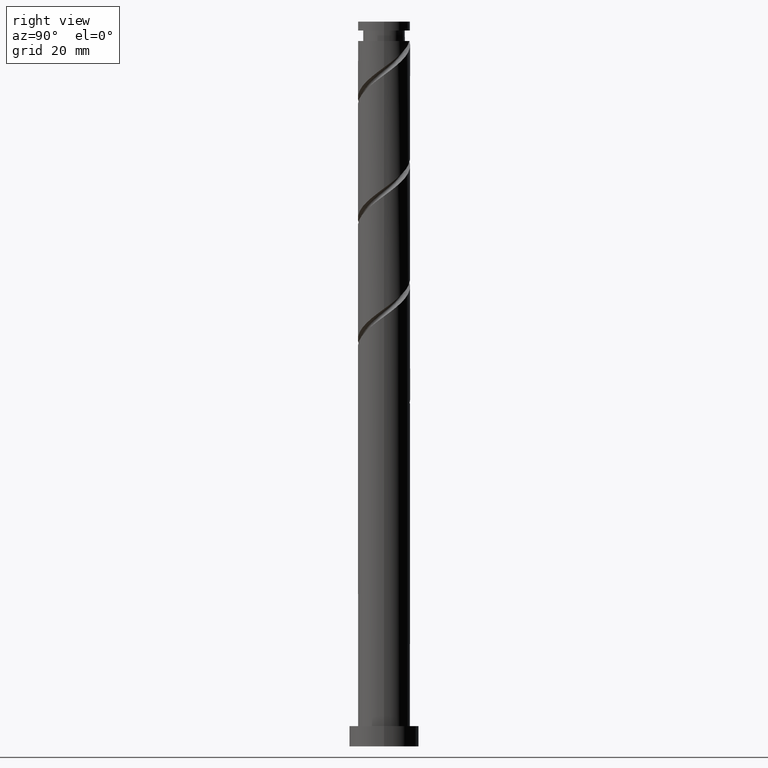
[diagram: clean part render]
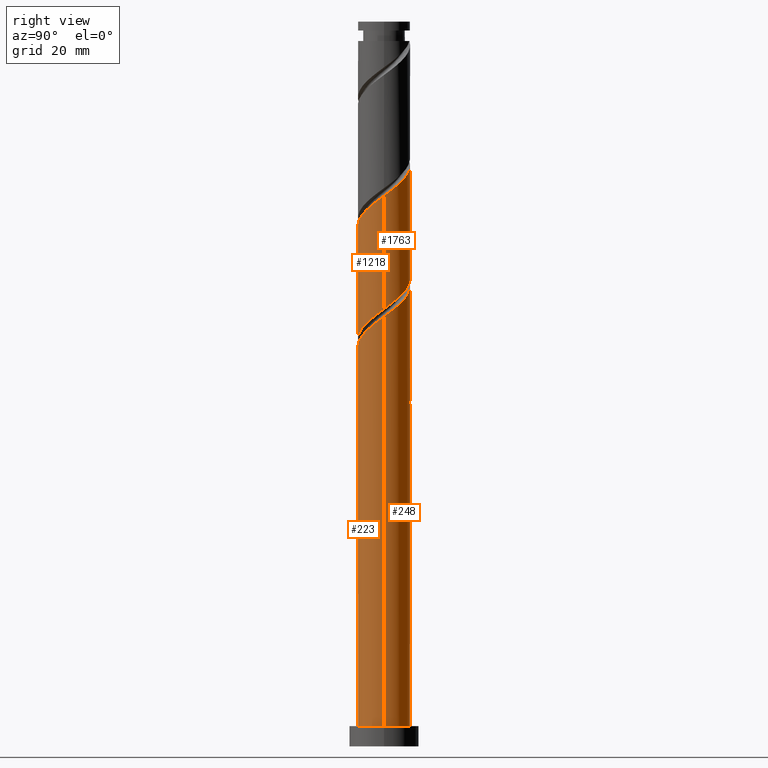
[diagram: same view with one multi-face feature highlighted, each face labeled with its STEP entity id]
A machine part, right view. The highlighted faces form ONE feature: a constant-radius fillet chain: 4 tangent blend faces with common blend radius 9 mm. The faces share edges in the B-rep.
Their STEP definitions:
[1] entity #223 (Cylinder):
#1 = CARTESIAN_POINT ( 'NONE',  ( -2.513026658482502729, -8.642030838509922930, 135.9426975238717716 ) ) ;
#102 = CARTESIAN_POINT ( 'NONE',  ( -8.971570738161101843, -0.7147856253253278558, 127.9298770110513175 ) ) ;
#151 = CARTESIAN_POINT ( 'NONE',  ( 8.881932594424455374, -1.453022156782449503, 147.1606462418205012 ) ) ;
#153 = LINE ( 'NONE', #1181, #1311 ) ;
#166 = EDGE_CURVE ( 'NONE', #523, #738, #1798, .T. ) ;
#223 = ADVANCED_FACE ( 'NONE', ( #701 ), #391, .T. ) ;
#235 = CARTESIAN_POINT ( 'NONE',  ( -5.453992861915051726, -7.242110811148893212, 133.5388513700256397 ) ) ;
#244 = CARTESIAN_POINT ( 'NONE',  ( -7.611753926546287907, -4.802208050647889692, 131.1350052161794792 ) ) ;
#351 = CARTESIAN_POINT ( 'NONE',  ( -9.000000000000015987, -2.034007640527002199E-15, 127.4032371864415296 ) ) ;
#365 = CARTESIAN_POINT ( 'NONE',  ( -9.000000000000014211, -2.034007640527002199E-15, 127.4032371864415296 ) ) ;
#375 = CARTESIAN_POINT ( 'NONE',  ( 1.790977386791917647, -8.820000000000012719, 139.1478257290000045 ) ) ;
#377 = CARTESIAN_POINT ( 'NONE',  ( 9.000000000000001776, 1.102182119232617911E-15, 7.000000000000000000 ) ) ;
#391 = CYLINDRICAL_SURFACE ( 'NONE', #482, 9.000000000000001776 ) ;
#408 = CARTESIAN_POINT ( 'NONE',  ( -7.028660301190715387, -5.726442308208970822, 131.9362872674615801 ) ) ;
#415 = CARTESIAN_POINT ( 'NONE',  ( 3.849698997916966903, -8.135097886653692711, 140.7503898315640924 ) ) ;
#424 = CARTESIAN_POINT ( 'NONE',  ( -3.562359181962312160, -8.336894157746568723, 135.1414154725896992 ) ) ;
#482 = AXIS2_PLACEMENT_3D ( 'NONE', #997, #1549, #974 ) ;
#496 = ORIENTED_EDGE ( 'NONE', *, *, #1120, .F. ) ;
#505 = CARTESIAN_POINT ( 'NONE',  ( -9.000000000000001776, 0.000000000000000000, 7.000000000000000000 ) ) ;
#516 = ORIENTED_EDGE ( 'NONE', *, *, #166, .T. ) ;
#523 = VERTEX_POINT ( 'NONE', #505 ) ;
#525 = CARTESIAN_POINT ( 'NONE',  ( 7.189307669428963266, -5.414227113290515980, 143.9555180366922968 ) ) ;
#568 = CARTESIAN_POINT ( 'NONE',  ( 8.705503762482042163, -2.531484027243907420, 146.3593641905384573 ) ) ;
#580 = DIRECTION ( 'NONE',  ( -0.000000000000000000, -0.000000000000000000, -1.000000000000000000 ) ) ;
#665 = CARTESIAN_POINT ( 'NONE',  ( -4.508176021938681721, -7.789502484447732300, 134.3401334213076836 ) ) ;
#670 = EDGE_CURVE ( 'NONE', #992, #523, #824, .T. ) ;
#676 = CARTESIAN_POINT ( 'NONE',  ( -9.000000000000014211, -0.3579581730309214782, 127.6674081020744751 ) ) ;
#701 = FACE_OUTER_BOUND ( 'NONE', #1074, .T. ) ;
#732 = CARTESIAN_POINT ( 'NONE',  ( 2.861919278812256273, -8.602535973789519730, 139.9491077802820485 ) ) ;
#738 = VERTEX_POINT ( 'NONE', #377 ) ;
#806 = CARTESIAN_POINT ( 'NONE',  ( -6.241326581552884001, -6.484276559678935570, 132.7375693187435957 ) ) ;
#824 = LINE ( 'NONE', #1540, #1117 ) ;
#886 = EDGE_CURVE ( 'NONE', #1367, #738, #153, .T. ) ;
#948 = CARTESIAN_POINT ( 'NONE',  ( -8.194847551901860427, -3.877973793086812559, 130.3337231648974353 ) ) ;
#974 = DIRECTION ( 'NONE',  ( -1.000000000000000000, 0.000000000000000000, 0.000000000000000000 ) ) ;
#990 = DIRECTION ( 'NONE',  ( 0.000000000000000000, 0.000000000000000000, 1.000000000000000000 ) ) ;
#992 = VERTEX_POINT ( 'NONE', #351 ) ;
#997 = CARTESIAN_POINT ( 'NONE',  ( 0.000000000000000000, 0.000000000000000000, 250.0000000000000000 ) ) ;
#1000 = CARTESIAN_POINT ( 'NONE',  ( 5.684690096369587664, -6.977413454012724614, 142.3529539341282373 ) ) ;
#1009 = CARTESIAN_POINT ( 'NONE',  ( -0.3718293201155592476, -8.992315772741894975, 137.5452616264359165 ) ) ;
#1066 = ORIENTED_EDGE ( 'NONE', *, *, #886, .F. ) ;
#1074 = EDGE_LOOP ( 'NONE', ( #1066, #496, #1726, #516 ) ) ;
#1096 = CARTESIAN_POINT ( 'NONE',  ( 0.7200354947715748022, -9.037464026210509260, 138.3465436777179605 ) ) ;
#1117 = VECTOR ( 'NONE', #1836, 1000.000000000000000 ) ;
#1120 = EDGE_CURVE ( 'NONE', #992, #1367, #1832, .T. ) ;
#1181 = CARTESIAN_POINT ( 'NONE',  ( 9.000000000000001776, 1.102182119232617911E-15, 250.0000000000000000 ) ) ;
#1188 = CARTESIAN_POINT ( 'NONE',  ( 9.000000000000017764, 8.076206807974860860E-16, 148.2365705197748298 ) ) ;
#1236 = CARTESIAN_POINT ( 'NONE',  ( 6.531901475717496020, -6.287167108507587976, 143.1542359854103097 ) ) ;
#1244 = CARTESIAN_POINT ( 'NONE',  ( 9.000000000000015987, -0.7313079468334059419, 147.6968697824264893 ) ) ;
#1282 = DIRECTION ( 'NONE',  ( 1.000000000000000000, 0.000000000000000000, 0.000000000000000000 ) ) ;
#1285 = CARTESIAN_POINT ( 'NONE',  ( 9.000000000000017764, 8.076206807974860860E-16, 148.2365705197748582 ) ) ;
#1311 = VECTOR ( 'NONE', #580, 1000.000000000000000 ) ;
#1366 = CARTESIAN_POINT ( 'NONE',  ( 4.837478717021678420, -7.667659799517866581, 141.5516718828461649 ) ) ;
#1367 = VERTEX_POINT ( 'NONE', #1188 ) ;
#1465 = AXIS2_PLACEMENT_3D ( 'NONE', #1831, #990, #1282 ) ;
#1504 = CARTESIAN_POINT ( 'NONE',  ( -8.539813800928600429, -2.841052665029230262, 129.5324411136153913 ) ) ;
#1513 = CARTESIAN_POINT ( 'NONE',  ( -8.884780049955336878, -1.804131536971649741, 128.7311590623333473 ) ) ;
#1540 = CARTESIAN_POINT ( 'NONE',  ( -9.000000000000001776, 0.000000000000000000, 250.0000000000000000 ) ) ;
#1549 = DIRECTION ( 'NONE',  ( -0.000000000000000000, -0.000000000000000000, -1.000000000000000000 ) ) ;
#1561 = CARTESIAN_POINT ( 'NONE',  ( 7.846713863140434064, -4.541287118073442208, 144.7568000879743693 ) ) ;
#1710 = CARTESIAN_POINT ( 'NONE',  ( -1.463694135002693519, -8.947167519273277136, 136.7439795751538441 ) ) ;
#1726 = ORIENTED_EDGE ( 'NONE', *, *, #670, .T. ) ;
#1798 = CIRCLE ( 'NONE', #1465, 9.000000000000001776 ) ;
#1809 = CARTESIAN_POINT ( 'NONE',  ( 8.276108812811241222, -3.536385572658672150, 145.5580821392564417 ) ) ;
#1831 = CARTESIAN_POINT ( 'NONE',  ( 0.000000000000000000, 0.000000000000000000, 7.000000000000000000 ) ) ;
#1832 =( BOUNDED_CURVE ( )  B_SPLINE_CURVE ( 2, ( #365, #676, #102, #1513, #1504, #948, #244, #408, #806, #235, #665, #424, #1, #1710, #1009, #1096, #375, #732, #415, #1366, #1000, #1236, #525, #1561, #1809, #568, #151, #1244, #1285 ),
 .UNSPECIFIED., .F., .T. ) 
 B_SPLINE_CURVE_WITH_KNOTS ( ( 3, 2, 2, 2, 2, 2, 2, 2, 2, 2, 2, 2, 2, 2, 3 ),
 ( 0.05452716259738339677, 0.05769230769230770939, 0.06730769230769229061, 0.07692307692307687184, 0.08653846153846156408, 0.09615384615384614531, 0.1057692307692307265, 0.1153846153846154188, 0.1250000000000000000, 0.1346153846153845812, 0.1442307692307692735, 0.1538461538461538547, 0.1634615384615384359, 0.1730769230769231282, 0.1795271625973833829 ),
 .UNSPECIFIED. ) 
 CURVE ( )  GEOMETRIC_REPRESENTATION_ITEM ( )  RATIONAL_B_SPLINE_CURVE ( ( 0.9061636035682776313, 0.9069090390690662806, 0.9090909090909228274, 0.9024626128164262573, 0.9090909090909228274, 0.9024626128164262573, 0.9090909090909228274, 0.9024626128164262573, 0.9090909090909228274, 0.9024626128164262573, 0.9090909090909228274, 0.9024626128164262573, 0.9090909090909228274, 0.9024626128164262573, 0.9090909090909228274, 0.9024626128164262573, 0.9090909090909228274, 0.9024626128164262573, 0.9090909090909228274, 0.9024626128164262573, 0.9090909090909228274, 0.9024626128164262573, 0.9090909090909228274, 0.9024626128164262573, 0.9090909090909228274, 0.9024626128164262573, 0.9090909090909228274, 0.9046444828382826930, 0.9061636035682776313 ) ) 
 REPRESENTATION_ITEM ( '' )  );
#1836 = DIRECTION ( 'NONE',  ( -0.000000000000000000, -0.000000000000000000, -1.000000000000000000 ) ) ;
[2] entity #248 (Cylinder):
#13 = AXIS2_PLACEMENT_3D ( 'NONE', #171, #768, #1729 ) ;
#36 = CARTESIAN_POINT ( 'NONE',  ( -6.531901475717496908, 6.287167108507587088, 122.3209026520769100 ) ) ;
#44 = CARTESIAN_POINT ( 'NONE',  ( -7.189307669428964154, 5.414227113290515092, 123.1221847033589967 ) ) ;
#59 = CARTESIAN_POINT ( 'NONE',  ( -6.531901475717496908, 6.287167108507587088, 163.9875693187436241 ) ) ;
#79 = VERTEX_POINT ( 'NONE', #1021 ) ;
#81 = CARTESIAN_POINT ( 'NONE',  ( -0.7200354947715740250, 9.037464026210509260, 159.1798770110513033 ) ) ;
#90 = CARTESIAN_POINT ( 'NONE',  ( 1.790977386791919423, 8.820000000000000284, 118.3144923956666617 ) ) ;
#126 = DIRECTION ( 'NONE',  ( -1.000000000000000000, 0.000000000000000000, 0.000000000000000000 ) ) ;
#130 =( BOUNDED_CURVE ( )  B_SPLINE_CURVE ( 2, ( #880, #758, #1439, #1310, #1748, #36, #44, #900, #188, #1327, #528, #1661, #800 ),
 .UNSPECIFIED., .F., .T. ) 
 B_SPLINE_CURVE_WITH_KNOTS ( ( 3, 2, 2, 2, 2, 2, 3 ),
 ( 0.000000000000000000, 0.009615384615384582959, 0.01923076923076927347, 0.02884615384615385469, 0.03846153846153842898, 0.04807692307692312816, 0.05452716259738338983 ),
 .UNSPECIFIED. ) 
 CURVE ( )  GEOMETRIC_REPRESENTATION_ITEM ( )  RATIONAL_B_SPLINE_CURVE ( ( 0.9090909090909228274, 0.9024626128164262573, 0.9090909090909228274, 0.9024626128164262573, 0.9090909090909228274, 0.9024626128164262573, 0.9090909090909228274, 0.9024626128164262573, 0.9090909090909228274, 0.9024626128164262573, 0.9090909090909228274, 0.9046444828382826930, 0.9061636035682776313 ) ) 
 REPRESENTATION_ITEM ( '' )  );
#153 = LINE ( 'NONE', #1181, #1311 ) ;
#171 = CARTESIAN_POINT ( 'NONE',  ( 0.000000000000000000, 0.000000000000000000, 118.3144923956666901 ) ) ;
#185 = CARTESIAN_POINT ( 'NONE',  ( -8.884780049955320891, 1.804131536971649297, 128.7311590623333473 ) ) ;
#188 = CARTESIAN_POINT ( 'NONE',  ( -8.276108812811241222, 3.536385572658672150, 124.7247488059230989 ) ) ;
#195 = CARTESIAN_POINT ( 'NONE',  ( 3.562359181962313937, 8.336894157746568723, 155.9747488059230704 ) ) ;
#215 = CARTESIAN_POINT ( 'NONE',  ( -7.028660301190702953, 5.726442308208962828, 125.5260308572051287 ) ) ;
#226 = CARTESIAN_POINT ( 'NONE',  ( -7.611753926546275473, 4.802208050647887916, 126.3273129084872011 ) ) ;
#248 = ADVANCED_FACE ( 'NONE', ( #828 ), #282, .T. ) ;
#282 = CYLINDRICAL_SURFACE ( 'NONE', #393, 9.000000000000001776 ) ;
#285 = CARTESIAN_POINT ( 'NONE',  ( -7.846713863140434064, 4.541287118073441320, 165.5901334213076836 ) ) ;
#303 = DIRECTION ( 'NONE',  ( 0.000000000000000000, 0.000000000000000000, 1.000000000000000000 ) ) ;
#335 = CARTESIAN_POINT ( 'NONE',  ( 7.028660301190718052, 5.726442308208966381, 152.7696206007948945 ) ) ;
#342 = CARTESIAN_POINT ( 'NONE',  ( -9.000000000000001776, 5.593521011449292137E-15, 130.0590809382252075 ) ) ;
#351 = CARTESIAN_POINT ( 'NONE',  ( -9.000000000000015987, -2.034007640527002199E-15, 127.4032371864415296 ) ) ;
#358 = CARTESIAN_POINT ( 'NONE',  ( -4.508176021938671063, 7.789502484447719866, 123.1221847033589967 ) ) ;
#377 = CARTESIAN_POINT ( 'NONE',  ( 9.000000000000001776, 1.102182119232617911E-15, 7.000000000000000000 ) ) ;
#393 = AXIS2_PLACEMENT_3D ( 'NONE', #1388, #850, #126 ) ;
#425 = EDGE_CURVE ( 'NONE', #882, #1543, #1610, .T. ) ;
#443 = ORIENTED_EDGE ( 'NONE', *, *, #670, .F. ) ;
#466 = EDGE_CURVE ( 'NONE', #882, #992, #130, .T. ) ;
#492 = CARTESIAN_POINT ( 'NONE',  ( 8.971570738161103620, 0.7147856253253245251, 148.7632103443846177 ) ) ;
#505 = CARTESIAN_POINT ( 'NONE',  ( -9.000000000000001776, 0.000000000000000000, 7.000000000000000000 ) ) ;
#513 = CARTESIAN_POINT ( 'NONE',  ( 5.453992861915056167, 7.242110811148891436, 154.3721847033589540 ) ) ;
#523 = VERTEX_POINT ( 'NONE', #505 ) ;
#528 = CARTESIAN_POINT ( 'NONE',  ( -8.881932594424455374, 1.453022156782448171, 126.3273129084871726 ) ) ;
#577 = CARTESIAN_POINT ( 'NONE',  ( -9.000000000000015987, -2.034007640527002199E-15, 169.0699038531081442 ) ) ;
#580 = DIRECTION ( 'NONE',  ( -0.000000000000000000, -0.000000000000000000, -1.000000000000000000 ) ) ;
#600 = ORIENTED_EDGE ( 'NONE', *, *, #1700, .F. ) ;
#624 = ORIENTED_EDGE ( 'NONE', *, *, #466, .F. ) ;
#630 = CARTESIAN_POINT ( 'NONE',  ( -7.189307669428964154, 5.414227113290515092, 164.7888513700256397 ) ) ;
#638 = CARTESIAN_POINT ( 'NONE',  ( -8.971570738161089409, 0.7147856253253311865, 129.5324411136153913 ) ) ;
#647 = CARTESIAN_POINT ( 'NONE',  ( 8.539813800928602205, 2.841052665029224933, 150.3657744469487341 ) ) ;
#656 = ORIENTED_EDGE ( 'NONE', *, *, #972, .F. ) ;
#670 = EDGE_CURVE ( 'NONE', #992, #523, #824, .T. ) ;
#673 = CARTESIAN_POINT ( 'NONE',  ( 1.790977386791919423, 8.820000000000000284, 118.3144923956666617 ) ) ;
#689 = CIRCLE ( 'NONE', #1225, 9.000000000000001776 ) ;
#722 = CARTESIAN_POINT ( 'NONE',  ( -8.276108812811241222, 3.536385572658672150, 166.3914154725897276 ) ) ;
#738 = VERTEX_POINT ( 'NONE', #377 ) ;
#744 = CARTESIAN_POINT ( 'NONE',  ( -1.790977386791916315, 8.820000000000012719, 118.3144923956666617 ) ) ;
#758 = CARTESIAN_POINT ( 'NONE',  ( -2.861919278812257605, 8.602535973789519730, 119.1157744469487341 ) ) ;
#766 = CARTESIAN_POINT ( 'NONE',  ( 0.3718293201155645766, 8.992315772741894975, 158.3785949597692593 ) ) ;
#768 = DIRECTION ( 'NONE',  ( -2.567906592516314938E-30, -3.854941057726240267E-15, -1.000000000000000000 ) ) ;
#773 = CARTESIAN_POINT ( 'NONE',  ( -5.684690096369588552, 6.977413454012724614, 163.1862872674615517 ) ) ;
#800 = CARTESIAN_POINT ( 'NONE',  ( -9.000000000000014211, -2.034007640527002199E-15, 127.4032371864415296 ) ) ;
#812 = LINE ( 'NONE', #1072, #1107 ) ;
#824 = LINE ( 'NONE', #1540, #1117 ) ;
#826 =( BOUNDED_CURVE ( )  B_SPLINE_CURVE ( 2, ( #342, #1087, #638, #185, #917, #1201, #226, #215, #1615, #1049, #358, #1475, #1634, #1494, #1358, #1486, #90 ),
 .UNSPECIFIED., .F., .T. ) 
 B_SPLINE_CURVE_WITH_KNOTS ( ( 3, 2, 2, 2, 2, 2, 2, 2, 3 ),
 ( 0.9295271625973833274, 0.9326923076923077094, 0.9423076923076922906, 0.9519230769230768718, 0.9615384615384615641, 0.9711538461538461453, 0.9807692307692307265, 0.9903846153846154188, 1.000000000000000000 ),
 .UNSPECIFIED. ) 
 CURVE ( )  GEOMETRIC_REPRESENTATION_ITEM ( )  RATIONAL_B_SPLINE_CURVE ( ( 0.9061636035682715251, 0.9069090390690601744, 0.9090909090909166101, 0.9024626128164202621, 0.9090909090909166101, 0.9024626128164202621, 0.9090909090909166101, 0.9024626128164202621, 0.9090909090909166101, 0.9024626128164202621, 0.9090909090909166101, 0.9024626128164202621, 0.9090909090909166101, 0.9024626128164202621, 0.9090909090909166101, 0.9024626128164202621, 0.9090909090909166101 ) ) 
 REPRESENTATION_ITEM ( '' )  );
#828 = FACE_OUTER_BOUND ( 'NONE', #1069, .T. ) ;
#850 = DIRECTION ( 'NONE',  ( -0.000000000000000000, -0.000000000000000000, -1.000000000000000000 ) ) ;
#880 = CARTESIAN_POINT ( 'NONE',  ( -1.790977386791916315, 8.820000000000012719, 118.3144923956666617 ) ) ;
#881 = ORIENTED_EDGE ( 'NONE', *, *, #1325, .T. ) ;
#882 = VERTEX_POINT ( 'NONE', #744 ) ;
#886 = EDGE_CURVE ( 'NONE', #1367, #738, #153, .T. ) ;
#898 = CARTESIAN_POINT ( 'NONE',  ( 2.513026658482507614, 8.642030838509921153, 156.7760308572051429 ) ) ;
#900 = CARTESIAN_POINT ( 'NONE',  ( -7.846713863140434064, 4.541287118073441320, 123.9234667546410549 ) ) ;
#909 = CARTESIAN_POINT ( 'NONE',  ( -1.790977386791916537, 8.820000000000012719, 159.9811590623333757 ) ) ;
#917 = CARTESIAN_POINT ( 'NONE',  ( -8.539813800928586218, 2.841052665029229818, 127.9298770110513175 ) ) ;
#925 = ORIENTED_EDGE ( 'NONE', *, *, #425, .T. ) ;
#928 = CARTESIAN_POINT ( 'NONE',  ( 1.463694135002694852, 8.947167519273277136, 157.5773129084871869 ) ) ;
#972 = EDGE_CURVE ( 'NONE', #79, #1543, #826, .T. ) ;
#992 = VERTEX_POINT ( 'NONE', #351 ) ;
#1019 = DIRECTION ( 'NONE',  ( 1.000000000000000000, 0.000000000000000000, 0.000000000000000000 ) ) ;
#1020 =( BOUNDED_CURVE ( )  B_SPLINE_CURVE ( 2, ( #1607, #1227, #492, #1065, #647, #1765, #1782, #335, #1791, #513, #1324, #195, #898, #928, #766, #81, #909, #1217, #1467, #1456, #773, #59, #630, #285, #722, #1645, #1699, #1693, #1146 ),
 .UNSPECIFIED., .F., .T. ) 
 B_SPLINE_CURVE_WITH_KNOTS ( ( 3, 2, 2, 2, 2, 2, 2, 2, 2, 2, 2, 2, 2, 2, 3 ),
 ( 0.1795271625973833829, 0.1826923076923077094, 0.1923076923076922906, 0.2019230769230768718, 0.2115384615384615641, 0.2211538461538461453, 0.2307692307692307265, 0.2403846153846154188, 0.2500000000000000000, 0.2596153846153845812, 0.2692307692307692735, 0.2788461538461538547, 0.2884615384615384359, 0.2980769230769231282, 0.3045271625973831608 ),
 .UNSPECIFIED. ) 
 CURVE ( )  GEOMETRIC_REPRESENTATION_ITEM ( )  RATIONAL_B_SPLINE_CURVE ( ( 0.9061636035682776313, 0.9069090390690662806, 0.9090909090909228274, 0.9024626128164262573, 0.9090909090909228274, 0.9024626128164262573, 0.9090909090909228274, 0.9024626128164262573, 0.9090909090909228274, 0.9024626128164262573, 0.9090909090909228274, 0.9024626128164262573, 0.9090909090909228274, 0.9024626128164262573, 0.9090909090909228274, 0.9024626128164262573, 0.9090909090909228274, 0.9024626128164262573, 0.9090909090909228274, 0.9024626128164262573, 0.9090909090909228274, 0.9024626128164262573, 0.9090909090909228274, 0.9024626128164262573, 0.9090909090909228274, 0.9024626128164262573, 0.9090909090909228274, 0.9046444828382829151, 0.9061636035682776313 ) ) 
 REPRESENTATION_ITEM ( '' )  );
#1021 = CARTESIAN_POINT ( 'NONE',  ( -9.000000000000001776, 5.593521011449292137E-15, 130.0590809382252075 ) ) ;
#1049 = CARTESIAN_POINT ( 'NONE',  ( -5.453992861915038404, 7.242110811148885219, 123.9234667546410122 ) ) ;
#1065 = CARTESIAN_POINT ( 'NONE',  ( 8.884780049955336878, 1.804131536971648631, 149.5644923956666617 ) ) ;
#1069 = EDGE_LOOP ( 'NONE', ( #1144, #1392, #881, #443, #624, #925, #656, #600 ) ) ;
#1072 = CARTESIAN_POINT ( 'NONE',  ( -9.000000000000001776, 0.000000000000000000, 250.0000000000000000 ) ) ;
#1082 = EDGE_CURVE ( 'NONE', #1367, #1109, #1020, .T. ) ;
#1087 = CARTESIAN_POINT ( 'NONE',  ( -9.000000000000000000, 0.3579581730309167042, 129.7949100225922052 ) ) ;
#1107 = VECTOR ( 'NONE', #1233, 1000.000000000000000 ) ;
#1109 = VERTEX_POINT ( 'NONE', #577 ) ;
#1117 = VECTOR ( 'NONE', #1836, 1000.000000000000000 ) ;
#1144 = ORIENTED_EDGE ( 'NONE', *, *, #1082, .F. ) ;
#1146 = CARTESIAN_POINT ( 'NONE',  ( -9.000000000000014211, -2.034007640527002199E-15, 169.0699038531081442 ) ) ;
#1177 = CARTESIAN_POINT ( 'NONE',  ( 0.000000000000000000, 0.000000000000000000, 7.000000000000000000 ) ) ;
#1181 = CARTESIAN_POINT ( 'NONE',  ( 9.000000000000001776, 1.102182119232617911E-15, 250.0000000000000000 ) ) ;
#1188 = CARTESIAN_POINT ( 'NONE',  ( 9.000000000000017764, 8.076206807974860860E-16, 148.2365705197748298 ) ) ;
#1201 = CARTESIAN_POINT ( 'NONE',  ( -8.194847551901844440, 3.877973793086807675, 127.1285949597692166 ) ) ;
#1217 = CARTESIAN_POINT ( 'NONE',  ( -2.861919278812257605, 8.602535973789519730, 160.7824411136153913 ) ) ;
#1225 = AXIS2_PLACEMENT_3D ( 'NONE', #1177, #303, #1019 ) ;
#1227 = CARTESIAN_POINT ( 'NONE',  ( 9.000000000000015987, 0.3579581730309179255, 148.5007414354077468 ) ) ;
#1233 = DIRECTION ( 'NONE',  ( -0.000000000000000000, -0.000000000000000000, -1.000000000000000000 ) ) ;
#1310 = CARTESIAN_POINT ( 'NONE',  ( -4.837478717021680197, 7.667659799517865693, 120.7183385495128221 ) ) ;
#1311 = VECTOR ( 'NONE', #580, 1000.000000000000000 ) ;
#1324 = CARTESIAN_POINT ( 'NONE',  ( 4.508176021938684386, 7.789502484447732300, 155.1734667546410833 ) ) ;
#1325 = EDGE_CURVE ( 'NONE', #738, #523, #689, .T. ) ;
#1327 = CARTESIAN_POINT ( 'NONE',  ( -8.705503762482043939, 2.531484027243902535, 125.5260308572051287 ) ) ;
#1358 = CARTESIAN_POINT ( 'NONE',  ( -0.3718293201155540850, 8.992315772741880764, 119.9170564982307781 ) ) ;
#1367 = VERTEX_POINT ( 'NONE', #1188 ) ;
#1388 = CARTESIAN_POINT ( 'NONE',  ( 0.000000000000000000, 0.000000000000000000, 250.0000000000000000 ) ) ;
#1392 = ORIENTED_EDGE ( 'NONE', *, *, #886, .T. ) ;
#1439 = CARTESIAN_POINT ( 'NONE',  ( -3.849698997916969567, 8.135097886653692711, 119.9170564982307781 ) ) ;
#1456 = CARTESIAN_POINT ( 'NONE',  ( -4.837478717021680197, 7.667659799517865693, 162.3850052161795077 ) ) ;
#1467 = CARTESIAN_POINT ( 'NONE',  ( -3.849698997916969567, 8.135097886653692711, 161.5837231648974353 ) ) ;
#1475 = CARTESIAN_POINT ( 'NONE',  ( -3.562359181962302834, 8.336894157746554512, 122.3209026520768532 ) ) ;
#1486 = CARTESIAN_POINT ( 'NONE',  ( 0.7200354947715791321, 9.037464026210495049, 119.1157744469487056 ) ) ;
#1494 = CARTESIAN_POINT ( 'NONE',  ( -1.463694135002686414, 8.947167519273266478, 120.7183385495128221 ) ) ;
#1540 = CARTESIAN_POINT ( 'NONE',  ( -9.000000000000001776, 0.000000000000000000, 250.0000000000000000 ) ) ;
#1543 = VERTEX_POINT ( 'NONE', #673 ) ;
#1607 = CARTESIAN_POINT ( 'NONE',  ( 9.000000000000017764, 8.076206807974860860E-16, 148.2365705197748582 ) ) ;
#1610 = CIRCLE ( 'NONE', #13, 9.000000000000001776 ) ;
#1615 = CARTESIAN_POINT ( 'NONE',  ( -6.241326581552871566, 6.484276559678926688, 124.7247488059230847 ) ) ;
#1634 = CARTESIAN_POINT ( 'NONE',  ( -2.513026658482495623, 8.642030838509908719, 121.5196206007949087 ) ) ;
#1645 = CARTESIAN_POINT ( 'NONE',  ( -8.705503762482043939, 2.531484027243902535, 167.1926975238718001 ) ) ;
#1661 = CARTESIAN_POINT ( 'NONE',  ( -9.000000000000015987, 0.7313079468334044986, 126.8635364490932034 ) ) ;
#1693 = CARTESIAN_POINT ( 'NONE',  ( -9.000000000000012434, 0.7313079468334309219, 168.5302031157597753 ) ) ;
#1699 = CARTESIAN_POINT ( 'NONE',  ( -8.881932594424455374, 1.453022156782448171, 167.9939795751538156 ) ) ;
#1700 = EDGE_CURVE ( 'NONE', #1109, #79, #812, .T. ) ;
#1729 = DIRECTION ( 'NONE',  ( 0.000000000000000000, 1.000000000000000000, -4.625929269271484533E-15 ) ) ;
#1748 = CARTESIAN_POINT ( 'NONE',  ( -5.684690096369588552, 6.977413454012724614, 121.5196206007948518 ) ) ;
#1765 = CARTESIAN_POINT ( 'NONE',  ( 8.194847551901862204, 3.877973793086809451, 151.1670564982307496 ) ) ;
#1782 = CARTESIAN_POINT ( 'NONE',  ( 7.611753926546287907, 4.802208050647890580, 151.9683385495127652 ) ) ;
#1791 = CARTESIAN_POINT ( 'NONE',  ( 6.241326581552884889, 6.484276559678933793, 153.5709026520769385 ) ) ;
#1836 = DIRECTION ( 'NONE',  ( -0.000000000000000000, -0.000000000000000000, -1.000000000000000000 ) ) ;
[3] entity #1218 (Cylinder):
#12 = EDGE_CURVE ( 'NONE', #999, #1671, #1762, .T. ) ;
#69 = CARTESIAN_POINT ( 'NONE',  ( 9.000000000000017764, 8.076206807974860860E-16, 189.9032371864414586 ) ) ;
#77 = CARTESIAN_POINT ( 'NONE',  ( 8.705503762482042163, -2.531484027243907420, 188.0260308572051429 ) ) ;
#79 = VERTEX_POINT ( 'NONE', #1021 ) ;
#87 = CARTESIAN_POINT ( 'NONE',  ( -5.453992861915051726, -7.242110811148893212, 175.2055180366922968 ) ) ;
#92 = ORIENTED_EDGE ( 'NONE', *, *, #578, .F. ) ;
#94 = CARTESIAN_POINT ( 'NONE',  ( 1.463694135002683083, -8.947167519273268255, 141.5516718828461080 ) ) ;
#106 = CARTESIAN_POINT ( 'NONE',  ( 9.000000000000001776, -9.272681890637864536E-15, 150.8924142715585219 ) ) ;
#113 = CYLINDRICAL_SURFACE ( 'NONE', #657, 9.000000000000001776 ) ;
#211 = CARTESIAN_POINT ( 'NONE',  ( 8.881932594424455374, -1.453022156782449503, 188.8273129084871300 ) ) ;
#217 = CARTESIAN_POINT ( 'NONE',  ( -8.276108812811228788, -3.536385572658663268, 132.7375693187435957 ) ) ;
#232 = CARTESIAN_POINT ( 'NONE',  ( 5.684690096369587664, -6.977413454012724614, 184.0196206007948376 ) ) ;
#247 = CARTESIAN_POINT ( 'NONE',  ( 7.028660301190700288, -5.726442308208967269, 146.3593641905384004 ) ) ;
#344 = CARTESIAN_POINT ( 'NONE',  ( 7.611753926546275473, -4.802208050647887916, 147.1606462418205581 ) ) ;
#347 = CARTESIAN_POINT ( 'NONE',  ( 9.000000000000001776, -9.272681890637864536E-15, 150.8924142715585219 ) ) ;
#356 = CARTESIAN_POINT ( 'NONE',  ( -6.241326581552884001, -6.484276559678935570, 174.4042359854103381 ) ) ;
#362 = CARTESIAN_POINT ( 'NONE',  ( -8.971570738161101843, -0.7147856253253278558, 169.5965436777179889 ) ) ;
#363 =( BOUNDED_CURVE ( )  B_SPLINE_CURVE ( 2, ( #510, #520, #362, #820, #662, #923, #1224, #1346, #356, #87, #382, #1789, #1382, #1780, #1207, #1062, #942, #636, #1491, #1501, #232, #1373, #1355, #1772, #794, #77, #211, #488, #1797 ),
 .UNSPECIFIED., .F., .T. ) 
 B_SPLINE_CURVE_WITH_KNOTS ( ( 3, 2, 2, 2, 2, 2, 2, 2, 2, 2, 2, 2, 2, 2, 3 ),
 ( 0.3045271625973831608, 0.3076923076923077094, 0.3173076923076922906, 0.3269230769230768718, 0.3365384615384615641, 0.3461538461538461453, 0.3557692307692307265, 0.3653846153846154188, 0.3750000000000000000, 0.3846153846153845812, 0.3942307692307692735, 0.4038461538461538547, 0.4134615384615384359, 0.4230769230769231282, 0.4295271625973832164 ),
 .UNSPECIFIED. ) 
 CURVE ( )  GEOMETRIC_REPRESENTATION_ITEM ( )  RATIONAL_B_SPLINE_CURVE ( ( 0.9061636035682776313, 0.9069090390690661696, 0.9090909090909228274, 0.9024626128164262573, 0.9090909090909228274, 0.9024626128164262573, 0.9090909090909228274, 0.9024626128164262573, 0.9090909090909228274, 0.9024626128164262573, 0.9090909090909228274, 0.9024626128164262573, 0.9090909090909228274, 0.9024626128164262573, 0.9090909090909228274, 0.9024626128164262573, 0.9090909090909228274, 0.9024626128164262573, 0.9090909090909228274, 0.9024626128164262573, 0.9090909090909228274, 0.9024626128164262573, 0.9090909090909228274, 0.9024626128164262573, 0.9090909090909228274, 0.9024626128164262573, 0.9090909090909228274, 0.9046444828382829151, 0.9061636035682776313 ) ) 
 REPRESENTATION_ITEM ( '' )  );
#368 = CARTESIAN_POINT ( 'NONE',  ( -8.705503762482027952, -2.531484027243894985, 131.9362872674615517 ) ) ;
#382 = CARTESIAN_POINT ( 'NONE',  ( -4.508176021938681721, -7.789502484447732300, 176.0068000879743693 ) ) ;
#384 = ORIENTED_EDGE ( 'NONE', *, *, #12, .F. ) ;
#478 = CARTESIAN_POINT ( 'NONE',  ( 9.000000000000001776, 1.102182119232617911E-15, 250.0000000000000000 ) ) ;
#488 = CARTESIAN_POINT ( 'NONE',  ( 9.000000000000012434, -0.7313079468334245936, 189.3635364490931181 ) ) ;
#495 = CARTESIAN_POINT ( 'NONE',  ( -4.837478717021676644, -7.667659799517847929, 136.7439795751537872 ) ) ;
#510 = CARTESIAN_POINT ( 'NONE',  ( -9.000000000000014211, -2.034007640527002199E-15, 169.0699038531081442 ) ) ;
#520 = CARTESIAN_POINT ( 'NONE',  ( -9.000000000000015987, -0.3579581730308948329, 169.3340747687410612 ) ) ;
#536 = CARTESIAN_POINT ( 'NONE',  ( 0.000000000000000000, 0.000000000000000000, 250.0000000000000000 ) ) ;
#577 = CARTESIAN_POINT ( 'NONE',  ( -9.000000000000015987, -2.034007640527002199E-15, 169.0699038531081442 ) ) ;
#578 = EDGE_CURVE ( 'NONE', #1671, #79, #1654, .T. ) ;
#632 = CARTESIAN_POINT ( 'NONE',  ( -6.531901475717487138, -6.287167108507572877, 135.1414154725896992 ) ) ;
#636 = CARTESIAN_POINT ( 'NONE',  ( 2.861919278812256273, -8.602535973789519730, 181.6157744469487341 ) ) ;
#641 = CARTESIAN_POINT ( 'NONE',  ( -8.881932594424444716, -1.453022156782441732, 131.1350052161795077 ) ) ;
#657 = AXIS2_PLACEMENT_3D ( 'NONE', #536, #1273, #1108 ) ;
#659 = CARTESIAN_POINT ( 'NONE',  ( -0.7200354947715811305, -9.037464026210495049, 139.9491077802820200 ) ) ;
#662 = CARTESIAN_POINT ( 'NONE',  ( -8.539813800928600429, -2.841052665029230262, 171.1991077802820200 ) ) ;
#669 = CARTESIAN_POINT ( 'NONE',  ( 6.241326581552871566, -6.484276559678926688, 145.5580821392564133 ) ) ;
#784 = CARTESIAN_POINT ( 'NONE',  ( 8.884780049955320891, -1.804131536971650407, 149.5644923956666332 ) ) ;
#794 = CARTESIAN_POINT ( 'NONE',  ( 8.276108812811241222, -3.536385572658672150, 187.2247488059230989 ) ) ;
#812 = LINE ( 'NONE', #1072, #1107 ) ;
#817 = CARTESIAN_POINT ( 'NONE',  ( -1.790977386791918313, -8.820000000000000284, 139.1478257290000045 ) ) ;
#820 = CARTESIAN_POINT ( 'NONE',  ( -8.884780049955336878, -1.804131536971649741, 170.3978257290000329 ) ) ;
#923 = CARTESIAN_POINT ( 'NONE',  ( -8.194847551901860427, -3.877973793086812559, 172.0003898315640924 ) ) ;
#942 = CARTESIAN_POINT ( 'NONE',  ( 1.790977386791917647, -8.820000000000012719, 180.8144923956666332 ) ) ;
#943 = ORIENTED_EDGE ( 'NONE', *, *, #1700, .T. ) ;
#999 = VERTEX_POINT ( 'NONE', #69 ) ;
#1021 = CARTESIAN_POINT ( 'NONE',  ( -9.000000000000001776, 5.593521011449292137E-15, 130.0590809382252075 ) ) ;
#1056 = DIRECTION ( 'NONE',  ( -0.000000000000000000, -0.000000000000000000, -1.000000000000000000 ) ) ;
#1062 = CARTESIAN_POINT ( 'NONE',  ( 0.7200354947715748022, -9.037464026210509260, 180.0132103443846177 ) ) ;
#1068 = CARTESIAN_POINT ( 'NONE',  ( -9.000000000000001776, 5.593521011449292137E-15, 130.0590809382252075 ) ) ;
#1072 = CARTESIAN_POINT ( 'NONE',  ( -9.000000000000001776, 0.000000000000000000, 250.0000000000000000 ) ) ;
#1081 = CARTESIAN_POINT ( 'NONE',  ( 9.000000000000000000, -0.3579581730309212562, 150.6282433559255480 ) ) ;
#1100 = CARTESIAN_POINT ( 'NONE',  ( -3.849698997916967791, -8.135097886653674948, 137.5452616264358880 ) ) ;
#1107 = VECTOR ( 'NONE', #1233, 1000.000000000000000 ) ;
#1108 = DIRECTION ( 'NONE',  ( -1.000000000000000000, 0.000000000000000000, 0.000000000000000000 ) ) ;
#1109 = VERTEX_POINT ( 'NONE', #577 ) ;
#1203 = CARTESIAN_POINT ( 'NONE',  ( -7.189307669428957048, -5.414227113290500881, 134.3401334213076836 ) ) ;
#1207 = CARTESIAN_POINT ( 'NONE',  ( -0.3718293201155592476, -8.992315772741894975, 179.2119282931025737 ) ) ;
#1212 = CARTESIAN_POINT ( 'NONE',  ( -9.000000000000007105, -0.7313079468334079403, 130.5987816755735480 ) ) ;
#1218 = ADVANCED_FACE ( 'NONE', ( #1376 ), #113, .T. ) ;
#1224 = CARTESIAN_POINT ( 'NONE',  ( -7.611753926546287907, -4.802208050647889692, 172.8016718828461649 ) ) ;
#1229 = CARTESIAN_POINT ( 'NONE',  ( -2.861919278812258494, -8.602535973789500190, 138.3465436777179605 ) ) ;
#1233 = DIRECTION ( 'NONE',  ( -0.000000000000000000, -0.000000000000000000, -1.000000000000000000 ) ) ;
#1239 = CARTESIAN_POINT ( 'NONE',  ( 4.508176021938668399, -7.789502484447722530, 143.9555180366922968 ) ) ;
#1273 = DIRECTION ( 'NONE',  ( -0.000000000000000000, -0.000000000000000000, -1.000000000000000000 ) ) ;
#1346 = CARTESIAN_POINT ( 'NONE',  ( -7.028660301190715387, -5.726442308208970822, 173.6029539341282373 ) ) ;
#1355 = CARTESIAN_POINT ( 'NONE',  ( 7.189307669428963266, -5.414227113290515980, 185.6221847033589825 ) ) ;
#1360 = CARTESIAN_POINT ( 'NONE',  ( 5.453992861915037516, -7.242110811148886995, 144.7568000879743693 ) ) ;
#1370 = CARTESIAN_POINT ( 'NONE',  ( 8.971570738161089409, -0.7147856253253362935, 150.3657744469487341 ) ) ;
#1373 = CARTESIAN_POINT ( 'NONE',  ( 6.531901475717496020, -6.287167108507587976, 184.8209026520769385 ) ) ;
#1376 = FACE_OUTER_BOUND ( 'NONE', #1833, .T. ) ;
#1382 = CARTESIAN_POINT ( 'NONE',  ( -2.513026658482502729, -8.642030838509922930, 177.6093641905384857 ) ) ;
#1491 = CARTESIAN_POINT ( 'NONE',  ( 3.849698997916966903, -8.135097886653692711, 182.4170564982308065 ) ) ;
#1498 = CARTESIAN_POINT ( 'NONE',  ( 2.513026658482495179, -8.642030838509908719, 142.3529539341282373 ) ) ;
#1501 = CARTESIAN_POINT ( 'NONE',  ( 4.837478717021678420, -7.667659799517866581, 183.2183385495127652 ) ) ;
#1517 = CARTESIAN_POINT ( 'NONE',  ( 8.194847551901844440, -3.877973793086807230, 147.9619282931025737 ) ) ;
#1576 = ORIENTED_EDGE ( 'NONE', *, *, #1656, .F. ) ;
#1579 = VECTOR ( 'NONE', #1056, 1000.000000000000000 ) ;
#1638 = CARTESIAN_POINT ( 'NONE',  ( 3.562359181962302390, -8.336894157746556289, 143.1542359854102813 ) ) ;
#1648 = CARTESIAN_POINT ( 'NONE',  ( -5.684690096369581447, -6.977413454012713956, 135.9426975238718001 ) ) ;
#1654 =( BOUNDED_CURVE ( )  B_SPLINE_CURVE ( 2, ( #106, #1081, #1370, #784, #1777, #1517, #344, #247, #669, #1360, #1239, #1638, #1498, #94, #1803, #659, #817, #1229, #1100, #495, #1648, #632, #1203, #1767, #217, #368, #641, #1212, #1068 ),
 .UNSPECIFIED., .F., .T. ) 
 B_SPLINE_CURVE_WITH_KNOTS ( ( 3, 2, 2, 2, 2, 2, 2, 2, 2, 2, 2, 2, 2, 2, 3 ),
 ( 0.8045271625973833274, 0.8076923076923077094, 0.8173076923076922906, 0.8269230769230768718, 0.8365384615384615641, 0.8461538461538461453, 0.8557692307692307265, 0.8653846153846154188, 0.8750000000000000000, 0.8846153846153845812, 0.8942307692307692735, 0.9038461538461538547, 0.9134615384615384359, 0.9230769230769231282, 0.9295271625973833274 ),
 .UNSPECIFIED. ) 
 CURVE ( )  GEOMETRIC_REPRESENTATION_ITEM ( )  RATIONAL_B_SPLINE_CURVE ( ( 0.9061636035682715251, 0.9069090390690601744, 0.9090909090909166101, 0.9024626128164202621, 0.9090909090909166101, 0.9024626128164202621, 0.9090909090909166101, 0.9024626128164202621, 0.9090909090909166101, 0.9024626128164202621, 0.9090909090909166101, 0.9024626128164202621, 0.9090909090909166101, 0.9024626128164202621, 0.9090909090909166101, 0.9024626128164202621, 0.9090909090909166101, 0.9024626128164202621, 0.9090909090909166101, 0.9024626128164202621, 0.9090909090909166101, 0.9024626128164202621, 0.9090909090909166101, 0.9024626128164202621, 0.9090909090909166101, 0.9024626128164202621, 0.9090909090909166101, 0.9046444828382766978, 0.9061636035682715251 ) ) 
 REPRESENTATION_ITEM ( '' )  );
#1656 = EDGE_CURVE ( 'NONE', #1109, #999, #363, .T. ) ;
#1671 = VERTEX_POINT ( 'NONE', #347 ) ;
#1700 = EDGE_CURVE ( 'NONE', #1109, #79, #812, .T. ) ;
#1762 = LINE ( 'NONE', #478, #1579 ) ;
#1767 = CARTESIAN_POINT ( 'NONE',  ( -7.846713863140423406, -4.541287118073426221, 133.5388513700256397 ) ) ;
#1772 = CARTESIAN_POINT ( 'NONE',  ( 7.846713863140434064, -4.541287118073442208, 186.4234667546410549 ) ) ;
#1777 = CARTESIAN_POINT ( 'NONE',  ( 8.539813800928584442, -2.841052665029232926, 148.7632103443846177 ) ) ;
#1780 = CARTESIAN_POINT ( 'NONE',  ( -1.463694135002693519, -8.947167519273277136, 178.4106462418205012 ) ) ;
#1789 = CARTESIAN_POINT ( 'NONE',  ( -3.562359181962312160, -8.336894157746568723, 176.8080821392564417 ) ) ;
#1797 = CARTESIAN_POINT ( 'NONE',  ( 9.000000000000017764, 8.076206807974860860E-16, 189.9032371864414586 ) ) ;
#1803 = CARTESIAN_POINT ( 'NONE',  ( 0.3718293201155509764, -8.992315772741880764, 140.7503898315641493 ) ) ;
#1833 = EDGE_LOOP ( 'NONE', ( #384, #1576, #943, #92 ) ) ;
[4] entity #1763 (Cylinder):
#12 = EDGE_CURVE ( 'NONE', #999, #1671, #1762, .T. ) ;
#39 = CARTESIAN_POINT ( 'NONE',  ( -9.000000000000012434, -6.221670429847296946E-15, 210.7365705197747445 ) ) ;
#49 = CARTESIAN_POINT ( 'NONE',  ( -7.028660301190702953, 5.726442308208962828, 167.1926975238717716 ) ) ;
#57 = CARTESIAN_POINT ( 'NONE',  ( 4.837478717021677532, 7.667659799517847929, 157.5773129084871300 ) ) ;
#69 = CARTESIAN_POINT ( 'NONE',  ( 9.000000000000017764, 8.076206807974860860E-16, 189.9032371864414586 ) ) ;
#83 = CARTESIAN_POINT ( 'NONE',  ( 8.884780049955336878, 1.804131536971648631, 191.2311590623333757 ) ) ;
#116 = CARTESIAN_POINT ( 'NONE',  ( 8.194847551901862204, 3.877973793086809451, 192.8337231648974637 ) ) ;
#137 = CARTESIAN_POINT ( 'NONE',  ( -8.276108812811241222, 3.536385572658672150, 208.0580821392564133 ) ) ;
#183 = CARTESIAN_POINT ( 'NONE',  ( 7.846713863140425183, 4.541287118073422668, 154.3721847033589256 ) ) ;
#192 = CARTESIAN_POINT ( 'NONE',  ( -2.513026658482495623, 8.642030838509908719, 163.1862872674615801 ) ) ;
#202 = CARTESIAN_POINT ( 'NONE',  ( -8.194847551901844440, 3.877973793086807675, 168.7952616264358312 ) ) ;
#246 = CARTESIAN_POINT ( 'NONE',  ( -6.531901475717496908, 6.287167108507587088, 205.6542359854102529 ) ) ;
#259 = CARTESIAN_POINT ( 'NONE',  ( 0.3718293201155645766, 8.992315772741894975, 200.0452616264358880 ) ) ;
#322 = CARTESIAN_POINT ( 'NONE',  ( -3.562359181962302834, 8.336894157746554512, 163.9875693187435672 ) ) ;
#326 = ORIENTED_EDGE ( 'NONE', *, *, #1593, .F. ) ;
#340 = CARTESIAN_POINT ( 'NONE',  ( -8.884780049955320891, 1.804131536971649297, 170.3978257290000045 ) ) ;
#347 = CARTESIAN_POINT ( 'NONE',  ( 9.000000000000001776, -9.272681890637864536E-15, 150.8924142715585219 ) ) ;
#388 = CARTESIAN_POINT ( 'NONE',  ( 6.241326581552884889, 6.484276559678933793, 195.2375693187436241 ) ) ;
#402 = CARTESIAN_POINT ( 'NONE',  ( -8.881932594424455374, 1.453022156782448171, 209.6606462418205297 ) ) ;
#422 = CARTESIAN_POINT ( 'NONE',  ( 0.000000000000000000, 0.000000000000000000, 250.0000000000000000 ) ) ;
#448 =( BOUNDED_CURVE ( )  B_SPLINE_CURVE ( 2, ( #1330, #741, #1031, #340, #1573, #202, #1761, #49, #1464, #1039, #1592, #322, #192, #1322, #779, #456, #477, #1582, #894, #57, #1453, #1055, #752, #183, #771, #1339, #762, #1613, #915 ),
 .UNSPECIFIED., .F., .T. ) 
 B_SPLINE_CURVE_WITH_KNOTS ( ( 3, 2, 2, 2, 2, 2, 2, 2, 2, 2, 2, 2, 2, 2, 3 ),
 ( 0.6795271625973834384, 0.6826923076923077094, 0.6923076923076922906, 0.7019230769230768718, 0.7115384615384615641, 0.7211538461538461453, 0.7307692307692307265, 0.7403846153846154188, 0.7500000000000000000, 0.7596153846153845812, 0.7692307692307692735, 0.7788461538461538547, 0.7884615384615384359, 0.7980769230769231282, 0.8045271625973833274 ),
 .UNSPECIFIED. ) 
 CURVE ( )  GEOMETRIC_REPRESENTATION_ITEM ( )  RATIONAL_B_SPLINE_CURVE ( ( 0.9061636035682715251, 0.9069090390690601744, 0.9090909090909166101, 0.9024626128164202621, 0.9090909090909166101, 0.9024626128164202621, 0.9090909090909166101, 0.9024626128164202621, 0.9090909090909166101, 0.9024626128164202621, 0.9090909090909166101, 0.9024626128164202621, 0.9090909090909166101, 0.9024626128164202621, 0.9090909090909166101, 0.9024626128164202621, 0.9090909090909166101, 0.9024626128164202621, 0.9090909090909166101, 0.9024626128164202621, 0.9090909090909166101, 0.9024626128164202621, 0.9090909090909166101, 0.9024626128164202621, 0.9090909090909166101, 0.9024626128164202621, 0.9090909090909166101, 0.9046444828382766978, 0.9061636035682715251 ) ) 
 REPRESENTATION_ITEM ( '' )  );
#456 = CARTESIAN_POINT ( 'NONE',  ( 0.7200354947715791321, 9.037464026210495049, 160.7824411136153628 ) ) ;
#477 = CARTESIAN_POINT ( 'NONE',  ( 1.790977386791919201, 8.820000000000000284, 159.9811590623333473 ) ) ;
#478 = CARTESIAN_POINT ( 'NONE',  ( 9.000000000000001776, 1.102182119232617911E-15, 250.0000000000000000 ) ) ;
#531 = CYLINDRICAL_SURFACE ( 'NONE', #1016, 9.000000000000001776 ) ;
#538 = CARTESIAN_POINT ( 'NONE',  ( -9.000000000000012434, -6.221670429847296946E-15, 210.7365705197747445 ) ) ;
#539 = CARTESIAN_POINT ( 'NONE',  ( 8.539813800928602205, 2.841052665029224933, 192.0324411136154197 ) ) ;
#540 = VECTOR ( 'NONE', #954, 1000.000000000000000 ) ;
#560 = DIRECTION ( 'NONE',  ( -1.000000000000000000, 0.000000000000000000, 0.000000000000000000 ) ) ;
#590 = ORIENTED_EDGE ( 'NONE', *, *, #1347, .F. ) ;
#610 = EDGE_CURVE ( 'NONE', #999, #1478, #946, .T. ) ;
#680 = CARTESIAN_POINT ( 'NONE',  ( 4.508176021938684386, 7.789502484447732300, 196.8401334213077121 ) ) ;
#741 = CARTESIAN_POINT ( 'NONE',  ( -9.000000000000000000, 0.3579581730309293053, 171.4615766892588908 ) ) ;
#752 = CARTESIAN_POINT ( 'NONE',  ( 7.189307669428957048, 5.414227113290499105, 155.1734667546410265 ) ) ;
#762 = CARTESIAN_POINT ( 'NONE',  ( 8.881932594424444716, 1.453022156782442620, 151.9683385495127936 ) ) ;
#771 = CARTESIAN_POINT ( 'NONE',  ( 8.276108812811230564, 3.536385572658662380, 153.5709026520769385 ) ) ;
#779 = CARTESIAN_POINT ( 'NONE',  ( -0.3718293201155540850, 8.992315772741880764, 161.5837231648974637 ) ) ;
#791 = CARTESIAN_POINT ( 'NONE',  ( 8.971570738161103620, 0.7147856253253245251, 190.4298770110512748 ) ) ;
#816 = CARTESIAN_POINT ( 'NONE',  ( -5.684690096369588552, 6.977413454012724614, 204.8529539341282089 ) ) ;
#825 = CARTESIAN_POINT ( 'NONE',  ( -0.7200354947715740250, 9.037464026210509260, 200.8465436777179320 ) ) ;
#839 = CARTESIAN_POINT ( 'NONE',  ( -4.837478717021680197, 7.667659799517865693, 204.0516718828461364 ) ) ;
#846 = EDGE_LOOP ( 'NONE', ( #1562, #1589, #590, #326 ) ) ;
#894 = CARTESIAN_POINT ( 'NONE',  ( 3.849698997916973564, 8.135097886653674948, 158.3785949597692309 ) ) ;
#915 = CARTESIAN_POINT ( 'NONE',  ( 9.000000000000001776, -9.272681890637864536E-15, 150.8924142715585219 ) ) ;
#930 = CARTESIAN_POINT ( 'NONE',  ( 9.000000000000017764, 8.076206807974860860E-16, 189.9032371864414586 ) ) ;
#946 =( BOUNDED_CURVE ( )  B_SPLINE_CURVE ( 2, ( #930, #1488, #791, #83, #539, #116, #1676, #1247, #388, #1812, #680, #1112, #971, #1527, #259, #825, #1369, #1394, #1386, #839, #816, #246, #1821, #1119, #137, #1516, #402, #970, #538 ),
 .UNSPECIFIED., .F., .T. ) 
 B_SPLINE_CURVE_WITH_KNOTS ( ( 3, 2, 2, 2, 2, 2, 2, 2, 2, 2, 2, 2, 2, 2, 3 ),
 ( 0.4295271625973832164, 0.4326923076923077094, 0.4423076923076922906, 0.4519230769230768718, 0.4615384615384615641, 0.4711538461538461453, 0.4807692307692307265, 0.4903846153846154188, 0.5000000000000000000, 0.5096153846153845812, 0.5192307692307691624, 0.5288461538461538547, 0.5384615384615384359, 0.5480769230769231282, 0.5545271625973833274 ),
 .UNSPECIFIED. ) 
 CURVE ( )  GEOMETRIC_REPRESENTATION_ITEM ( )  RATIONAL_B_SPLINE_CURVE ( ( 0.9061636035682776313, 0.9069090390690661696, 0.9090909090909228274, 0.9024626128164262573, 0.9090909090909228274, 0.9024626128164262573, 0.9090909090909228274, 0.9024626128164262573, 0.9090909090909228274, 0.9024626128164262573, 0.9090909090909228274, 0.9024626128164262573, 0.9090909090909228274, 0.9024626128164262573, 0.9090909090909228274, 0.9024626128164262573, 0.9090909090909228274, 0.9024626128164262573, 0.9090909090909228274, 0.9024626128164262573, 0.9090909090909228274, 0.9024626128164262573, 0.9090909090909228274, 0.9024626128164262573, 0.9090909090909228274, 0.9024626128164262573, 0.9090909090909228274, 0.9046444828382828041, 0.9061636035682775203 ) ) 
 REPRESENTATION_ITEM ( '' )  );
#954 = DIRECTION ( 'NONE',  ( -0.000000000000000000, -0.000000000000000000, -1.000000000000000000 ) ) ;
#970 = CARTESIAN_POINT ( 'NONE',  ( -9.000000000000014211, 0.7313079468334121591, 210.1968697824264609 ) ) ;
#971 = CARTESIAN_POINT ( 'NONE',  ( 2.513026658482507614, 8.642030838509921153, 198.4426975238717716 ) ) ;
#999 = VERTEX_POINT ( 'NONE', #69 ) ;
#1016 = AXIS2_PLACEMENT_3D ( 'NONE', #422, #1397, #560 ) ;
#1031 = CARTESIAN_POINT ( 'NONE',  ( -8.971570738161089409, 0.7147856253253311865, 171.1991077802820485 ) ) ;
#1039 = CARTESIAN_POINT ( 'NONE',  ( -5.453992861915038404, 7.242110811148885219, 165.5901334213076836 ) ) ;
#1055 = CARTESIAN_POINT ( 'NONE',  ( 6.531901475717488026, 6.287167108507572877, 155.9747488059230704 ) ) ;
#1056 = DIRECTION ( 'NONE',  ( -0.000000000000000000, -0.000000000000000000, -1.000000000000000000 ) ) ;
#1085 = LINE ( 'NONE', #1520, #540 ) ;
#1112 = CARTESIAN_POINT ( 'NONE',  ( 3.562359181962313937, 8.336894157746568723, 197.6414154725897561 ) ) ;
#1119 = CARTESIAN_POINT ( 'NONE',  ( -7.846713863140434064, 4.541287118073441320, 207.2568000879744545 ) ) ;
#1129 = VERTEX_POINT ( 'NONE', #1800 ) ;
#1247 = CARTESIAN_POINT ( 'NONE',  ( 7.028660301190718052, 5.726442308208966381, 194.4362872674615517 ) ) ;
#1322 = CARTESIAN_POINT ( 'NONE',  ( -1.463694135002686414, 8.947167519273266478, 162.3850052161794508 ) ) ;
#1330 = CARTESIAN_POINT ( 'NONE',  ( -9.000000000000001776, 5.593521011449292137E-15, 171.7257476048918363 ) ) ;
#1339 = CARTESIAN_POINT ( 'NONE',  ( 8.705503762482029728, 2.531484027243890544, 152.7696206007948660 ) ) ;
#1347 = EDGE_CURVE ( 'NONE', #1129, #1671, #448, .T. ) ;
#1369 = CARTESIAN_POINT ( 'NONE',  ( -1.790977386791916537, 8.820000000000012719, 201.6478257290000329 ) ) ;
#1386 = CARTESIAN_POINT ( 'NONE',  ( -3.849698997916969567, 8.135097886653692711, 203.2503898315641209 ) ) ;
#1394 = CARTESIAN_POINT ( 'NONE',  ( -2.861919278812257605, 8.602535973789519730, 202.4491077802820485 ) ) ;
#1397 = DIRECTION ( 'NONE',  ( -0.000000000000000000, -0.000000000000000000, -1.000000000000000000 ) ) ;
#1453 = CARTESIAN_POINT ( 'NONE',  ( 5.684690096369586776, 6.977413454012709515, 156.7760308572051429 ) ) ;
#1464 = CARTESIAN_POINT ( 'NONE',  ( -6.241326581552871566, 6.484276559678926688, 166.3914154725897276 ) ) ;
#1478 = VERTEX_POINT ( 'NONE', #39 ) ;
#1488 = CARTESIAN_POINT ( 'NONE',  ( 9.000000000000019540, 0.3579581730308991072, 190.1674081020744325 ) ) ;
#1516 = CARTESIAN_POINT ( 'NONE',  ( -8.705503762482043939, 2.531484027243902535, 208.8593641905384573 ) ) ;
#1520 = CARTESIAN_POINT ( 'NONE',  ( -9.000000000000001776, 0.000000000000000000, 250.0000000000000000 ) ) ;
#1527 = CARTESIAN_POINT ( 'NONE',  ( 1.463694135002694852, 8.947167519273277136, 199.2439795751538725 ) ) ;
#1562 = ORIENTED_EDGE ( 'NONE', *, *, #610, .F. ) ;
#1573 = CARTESIAN_POINT ( 'NONE',  ( -8.539813800928586218, 2.841052665029229818, 169.5965436777179605 ) ) ;
#1579 = VECTOR ( 'NONE', #1056, 1000.000000000000000 ) ;
#1582 = CARTESIAN_POINT ( 'NONE',  ( 2.861919278812259382, 8.602535973789500190, 159.1798770110512748 ) ) ;
#1589 = ORIENTED_EDGE ( 'NONE', *, *, #12, .T. ) ;
#1592 = CARTESIAN_POINT ( 'NONE',  ( -4.508176021938671063, 7.789502484447719866, 164.7888513700256681 ) ) ;
#1593 = EDGE_CURVE ( 'NONE', #1478, #1129, #1085, .T. ) ;
#1613 = CARTESIAN_POINT ( 'NONE',  ( 9.000000000000003553, 0.7313079468334061639, 151.4321150089068908 ) ) ;
#1671 = VERTEX_POINT ( 'NONE', #347 ) ;
#1676 = CARTESIAN_POINT ( 'NONE',  ( 7.611753926546287907, 4.802208050647890580, 193.6350052161794792 ) ) ;
#1761 = CARTESIAN_POINT ( 'NONE',  ( -7.611753926546275473, 4.802208050647887916, 167.9939795751538156 ) ) ;
#1762 = LINE ( 'NONE', #478, #1579 ) ;
#1763 = ADVANCED_FACE ( 'NONE', ( #1807 ), #531, .T. ) ;
#1800 = CARTESIAN_POINT ( 'NONE',  ( -9.000000000000001776, 5.593521011449292137E-15, 171.7257476048918363 ) ) ;
#1807 = FACE_OUTER_BOUND ( 'NONE', #846, .T. ) ;
#1812 = CARTESIAN_POINT ( 'NONE',  ( 5.453992861915056167, 7.242110811148891436, 196.0388513700256397 ) ) ;
#1821 = CARTESIAN_POINT ( 'NONE',  ( -7.189307669428964154, 5.414227113290515092, 206.4555180366922684 ) ) ;